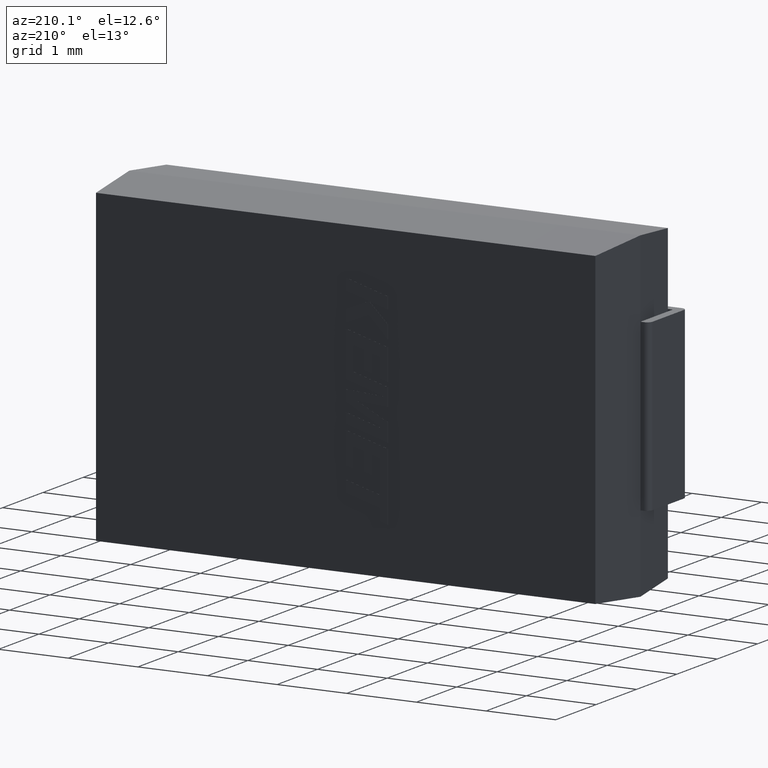
[diagram: clean part render]
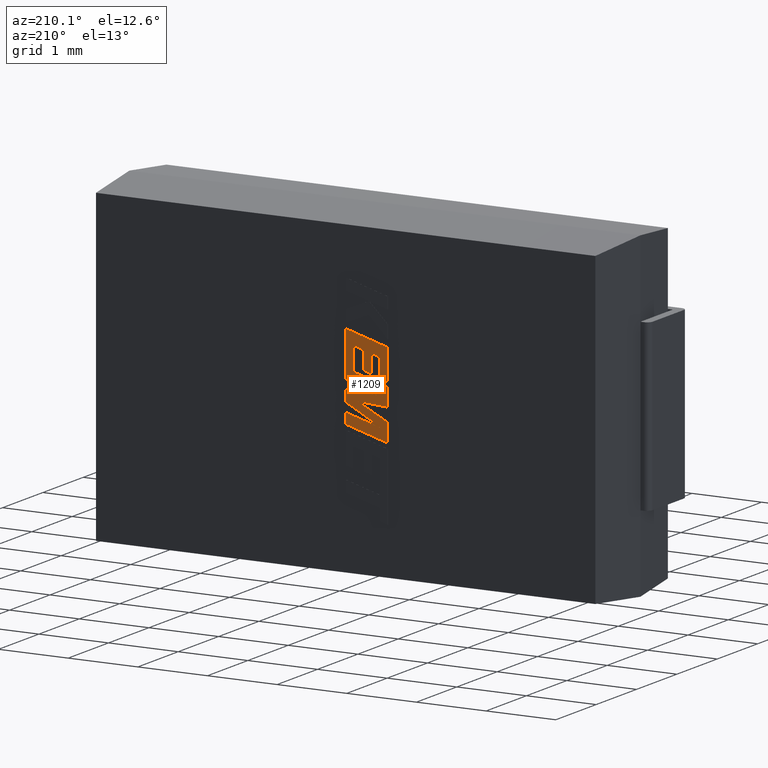
[diagram: same view with one face highlighted and labeled with its STEP entity id]
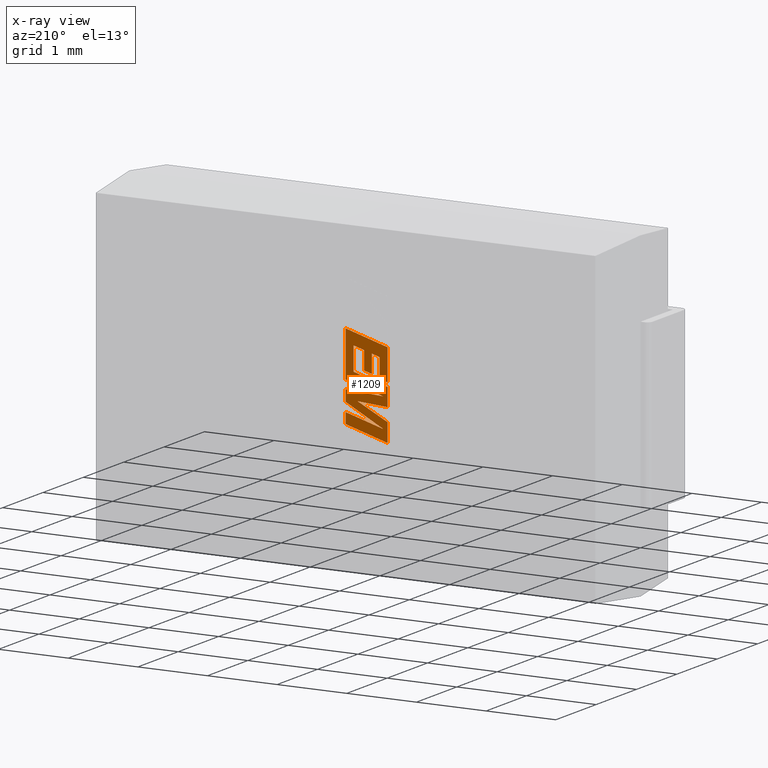
[diagram: x-ray of the same camera — body ghosted, the highlighted face saturated]
A machine part, auxiliary view. The second image highlights one B-rep face of the part: STEP entity #1209.
The next image is the same camera in x-ray: the body ghosted, the highlighted face saturated — about 0% of this face is hidden behind the body in this view.
In plain terms, the highlighted planar face has unit normal (-0, 1, -0).
Its self-contained STEP definition (entity closure, byte-faithful):
#3 = VECTOR ( 'NONE', #3378, 1000.000000000000000 ) ;
#59 = ORIENTED_EDGE ( 'NONE', *, *, #1666, .T. ) ;
#61 = CARTESIAN_POINT ( 'NONE',  ( 0.1148680530367130500, 0.9710000000000000900, -0.3522094576957942600 ) ) ;
#63 = ORIENTED_EDGE ( 'NONE', *, *, #706, .T. ) ;
#87 = CARTESIAN_POINT ( 'NONE',  ( 0.4888473714328154300, 0.9710000000000000900, -0.5796287428792815700 ) ) ;
#113 = ORIENTED_EDGE ( 'NONE', *, *, #3623, .T. ) ;
#133 = DIRECTION ( 'NONE',  ( 2.205986198964109500E-016, 0.0000000000000000000, 1.000000000000000000 ) ) ;
#139 = DIRECTION ( 'NONE',  ( 0.9619530280422579100, 0.0000000000000000000, 0.2732148821721305200 ) ) ;
#146 = ORIENTED_EDGE ( 'NONE', *, *, #2952, .T. ) ;
#202 = EDGE_CURVE ( 'NONE', #953, #1149, #823, .T. ) ;
#225 = PLANE ( 'NONE',  #3861 ) ;
#266 = VECTOR ( 'NONE', #139, 999.9999999999998900 ) ;
#267 = DIRECTION ( 'NONE',  ( 9.097978414977007300E-014, 0.0000000000000000000, -1.000000000000000000 ) ) ;
#278 = DIRECTION ( 'NONE',  ( 9.090908466822406900E-014, 0.0000000000000000000, -1.000000000000000000 ) ) ;
#292 = LINE ( 'NONE', #1015, #3201 ) ;
#293 = CARTESIAN_POINT ( 'NONE',  ( 0.6037723352830632900, 0.9710000000000000900, 0.5009680948956847200 ) ) ;
#337 = CARTESIAN_POINT ( 'NONE',  ( 0.5375226400641756100, 0.9710000000000000900, -0.08690409323463860200 ) ) ;
#339 = LINE ( 'NONE', #809, #381 ) ;
#342 = VERTEX_POINT ( 'NONE', #1706 ) ;
#354 = VECTOR ( 'NONE', #133, 1000.000000000000000 ) ;
#381 = VECTOR ( 'NONE', #2572, 1000.000000000000200 ) ;
#388 = VERTEX_POINT ( 'NONE', #1685 ) ;
#390 = VERTEX_POINT ( 'NONE', #2594 ) ;
#399 = EDGE_CURVE ( 'NONE', #2065, #1013, #339, .T. ) ;
#406 = CARTESIAN_POINT ( 'NONE',  ( 0.5375226400641756100, 0.9710000000000000900, -0.08690409323463860200 ) ) ;
#434 = CARTESIAN_POINT ( 'NONE',  ( 0.6037723352831740900, 0.9710000000000000900, -0.7179495588611855000 ) ) ;
#436 = DIRECTION ( 'NONE',  ( 0.9977993186281748400, 0.0000000000000000000, 0.06630625720963190300 ) ) ;
#458 = LINE ( 'NONE', #1103, #3077 ) ;
#473 = CARTESIAN_POINT ( 'NONE',  ( 0.5401111641926021900, 0.9710000000000000900, 0.3290533760443737400 ) ) ;
#495 = ORIENTED_EDGE ( 'NONE', *, *, #3690, .T. ) ;
#507 = ORIENTED_EDGE ( 'NONE', *, *, #2404, .T. ) ;
#525 = LINE ( 'NONE', #434, #3502 ) ;
#529 = EDGE_CURVE ( 'NONE', #590, #1742, #3893, .T. ) ;
#539 = CARTESIAN_POINT ( 'NONE',  ( 0.6037723352831335700, 0.9710000000000000900, -0.2719027913677968800 ) ) ;
#590 = VERTEX_POINT ( 'NONE', #1858 ) ;
#593 = VECTOR ( 'NONE', #436, 1000.000000000000100 ) ;
#604 = VECTOR ( 'NONE', #267, 1000.000000000000000 ) ;
#610 = CARTESIAN_POINT ( 'NONE',  ( 0.2649290192373626700, 0.9710000000000000900, -0.6441509195145620500 ) ) ;
#688 = LINE ( 'NONE', #3626, #604 ) ;
#689 = CARTESIAN_POINT ( 'NONE',  ( 0.1724296214341100900, 0.9710000000000000900, 0.01678134112216285400 ) ) ;
#697 = ORIENTED_EDGE ( 'NONE', *, *, #3599, .T. ) ;
#706 = EDGE_CURVE ( 'NONE', #1149, #1470, #2079, .T. ) ;
#708 = VERTEX_POINT ( 'NONE', #337 ) ;
#709 = VECTOR ( 'NONE', #3605, 1000.000000000000000 ) ;
#711 = DIRECTION ( 'NONE',  ( 0.9615454294341646600, 0.0000000000000000000, 0.2746459304891803500 ) ) ;
#722 = CARTESIAN_POINT ( 'NONE',  ( 0.6037723352831740900, 0.9710000000000000900, -0.7179495588611855000 ) ) ;
#737 = DIRECTION ( 'NONE',  ( -9.100055233942956100E-014, 0.0000000000000000000, 1.000000000000000000 ) ) ;
#749 = CARTESIAN_POINT ( 'NONE',  ( -8.822695178600791300E-016, 0.9710000000000000900, -0.2412425496636904600 ) ) ;
#782 = ORIENTED_EDGE ( 'NONE', *, *, #3118, .T. ) ;
#809 = CARTESIAN_POINT ( 'NONE',  ( 0.6037723352831281300, 0.9710000000000000900, -0.2116801349541560500 ) ) ;
#812 = LINE ( 'NONE', #61, #3 ) ;
#823 = LINE ( 'NONE', #1053, #2796 ) ;
#864 = EDGE_CURVE ( 'NONE', #1742, #390, #525, .T. ) ;
#879 = LINE ( 'NONE', #1916, #918 ) ;
#918 = VECTOR ( 'NONE', #1131, 1000.000000000000200 ) ;
#953 = VERTEX_POINT ( 'NONE', #2864 ) ;
#994 = ORIENTED_EDGE ( 'NONE', *, *, #202, .T. ) ;
#1013 = VERTEX_POINT ( 'NONE', #2531 ) ;
#1015 = CARTESIAN_POINT ( 'NONE',  ( 0.6037723352830873800, 0.9710000000000000900, 0.2361576550631197000 ) ) ;
#1031 = DIRECTION ( 'NONE',  ( -0.9610029908221109400, 0.0000000000000000000, -0.2765379750250543400 ) ) ;
#1047 = DIRECTION ( 'NONE',  ( -0.9984327301130305800, 0.0000000000000000000, -0.05596501978057384600 ) ) ;
#1048 = DIRECTION ( 'NONE',  ( 0.9617234872627998800, 0.0000000000000000000, 0.2740217765928089100 ) ) ;
#1053 = CARTESIAN_POINT ( 'NONE',  ( -8.112542755622786900E-016, 0.9710000000000000900, 0.1739512132056387800 ) ) ;
#1086 = LINE ( 'NONE', #2195, #266 ) ;
#1103 = CARTESIAN_POINT ( 'NONE',  ( 0.6037723352830632900, 0.9710000000000000900, 0.5009680948956847200 ) ) ;
#1131 = DIRECTION ( 'NONE',  ( 0.8843386665638872700, 0.0000000000000000000, 0.4668459304952820000 ) ) ;
#1149 = VERTEX_POINT ( 'NONE', #2274 ) ;
#1154 = ORIENTED_EDGE ( 'NONE', *, *, #864, .T. ) ;
#1163 = CARTESIAN_POINT ( 'NONE',  ( 0.1719568060153508500, 0.9710000000000000900, 0.01662713069071038500 ) ) ;
#1209 = ADVANCED_FACE ( 'NONE', ( #2099 ), #225, .T. ) ;
#1225 = VECTOR ( 'NONE', #3470, 999.9999999999998900 ) ;
#1282 = VECTOR ( 'NONE', #2100, 1000.000000000000000 ) ;
#1366 = EDGE_CURVE ( 'NONE', #2583, #3517, #292, .T. ) ;
#1411 = VECTOR ( 'NONE', #1048, 1000.000000000000100 ) ;
#1422 = LINE ( 'NONE', #3394, #1845 ) ;
#1426 = ORIENTED_EDGE ( 'NONE', *, *, #399, .T. ) ;
#1441 = CARTESIAN_POINT ( 'NONE',  ( 0.2649290192373626700, 0.9710000000000000900, -0.6441509195145620500 ) ) ;
#1470 = VERTEX_POINT ( 'NONE', #293 ) ;
#1541 = EDGE_CURVE ( 'NONE', #2204, #342, #2782, .T. ) ;
#1547 = VECTOR ( 'NONE', #1961, 1000.000000000000200 ) ;
#1585 = LINE ( 'NONE', #2121, #3907 ) ;
#1590 = EDGE_CURVE ( 'NONE', #388, #2065, #2160, .T. ) ;
#1621 = ORIENTED_EDGE ( 'NONE', *, *, #2803, .T. ) ;
#1623 = VECTOR ( 'NONE', #737, 1000.000000000000000 ) ;
#1649 = CARTESIAN_POINT ( 'NONE',  ( 0.4888473714327902800, 0.9710000000000000900, -0.3045438970576566700 ) ) ;
#1656 = CARTESIAN_POINT ( 'NONE',  ( 0.1724296214341100900, 0.9710000000000000900, 0.01678134112216285400 ) ) ;
#1666 = EDGE_CURVE ( 'NONE', #1013, #3320, #812, .T. ) ;
#1671 = EDGE_LOOP ( 'NONE', ( #782, #3415, #3777, #2429, #1426, #59, #507, #3217, #2484, #1621, #3732, #697, #2275, #2211, #1154, #2395, #3254, #113, #3245, #495, #146, #994, #63 ) ) ;
#1685 = CARTESIAN_POINT ( 'NONE',  ( 0.6037723352831047000, 0.9710000000000000900, 0.04544514194465076900 ) ) ;
#1706 = CARTESIAN_POINT ( 'NONE',  ( 0.2649290192373391400, 0.9710000000000000900, -0.3850414899870292500 ) ) ;
#1742 = VERTEX_POINT ( 'NONE', #722 ) ;
#1765 = DIRECTION ( 'NONE',  ( 0.0000000000000000000, 1.000000000000000000, 0.0000000000000000000 ) ) ;
#1776 = CARTESIAN_POINT ( 'NONE',  ( 0.3765458125335470200, 0.9710000000000000900, -0.3531604190415877900 ) ) ;
#1845 = VECTOR ( 'NONE', #2474, 1000.000000000000200 ) ;
#1858 = CARTESIAN_POINT ( 'NONE',  ( 0.6037723352831335700, 0.9710000000000000900, -0.2719027913677968800 ) ) ;
#1913 = VERTEX_POINT ( 'NONE', #1964 ) ;
#1916 = CARTESIAN_POINT ( 'NONE',  ( -8.112542755622786900E-016, 0.9710000000000000900, 0.04392652526658989700 ) ) ;
#1947 = CARTESIAN_POINT ( 'NONE',  ( -8.467618967111790600E-016, 0.9710000000000000900, -0.1170337797687451300 ) ) ;
#1961 = DIRECTION ( 'NONE',  ( 0.9611638845409428100, 0.0000000000000000000, 0.2759782365589088000 ) ) ;
#1964 = CARTESIAN_POINT ( 'NONE',  ( -8.822695178600791300E-016, 0.9710000000000000900, -0.2412425496636904600 ) ) ;
#1981 = CARTESIAN_POINT ( 'NONE',  ( -8.467618967111790600E-016, 0.9710000000000000900, -0.1170337797687451300 ) ) ;
#2065 = VERTEX_POINT ( 'NONE', #3620 ) ;
#2079 = LINE ( 'NONE', #2704, #3741 ) ;
#2083 = VECTOR ( 'NONE', #278, 1000.000000000000000 ) ;
#2099 = FACE_OUTER_BOUND ( 'NONE', #1671, .T. ) ;
#2100 = DIRECTION ( 'NONE',  ( -9.099267628299300500E-014, 0.0000000000000000000, 1.000000000000000000 ) ) ;
#2102 = LINE ( 'NONE', #3456, #1411 ) ;
#2103 = VERTEX_POINT ( 'NONE', #3369 ) ;
#2121 = CARTESIAN_POINT ( 'NONE',  ( 0.2649290192373391400, 0.9710000000000000900, -0.3850414899870292500 ) ) ;
#2152 = EDGE_CURVE ( 'NONE', #3253, #3221, #1422, .T. ) ;
#2160 = LINE ( 'NONE', #2664, #709 ) ;
#2195 = CARTESIAN_POINT ( 'NONE',  ( 0.4888473714327902800, 0.9710000000000000900, -0.3045438970576566700 ) ) ;
#2204 = VERTEX_POINT ( 'NONE', #1441 ) ;
#2211 = ORIENTED_EDGE ( 'NONE', *, *, #529, .T. ) ;
#2256 = DIRECTION ( 'NONE',  ( 9.091094427461413900E-014, 0.0000000000000000000, -1.000000000000000000 ) ) ;
#2274 = CARTESIAN_POINT ( 'NONE',  ( -8.112542755622786900E-016, 0.9710000000000000900, 0.3273790966074727200 ) ) ;
#2275 = ORIENTED_EDGE ( 'NONE', *, *, #3280, .T. ) ;
#2292 = VERTEX_POINT ( 'NONE', #1776 ) ;
#2312 = DIRECTION ( 'NONE',  ( 0.0000000000000000000, 0.0000000000000000000, 1.000000000000000000 ) ) ;
#2331 = LINE ( 'NONE', #749, #1547 ) ;
#2395 = ORIENTED_EDGE ( 'NONE', *, *, #2517, .T. ) ;
#2404 = EDGE_CURVE ( 'NONE', #3320, #2204, #2102, .T. ) ;
#2429 = ORIENTED_EDGE ( 'NONE', *, *, #1590, .T. ) ;
#2431 = EDGE_CURVE ( 'NONE', #1913, #708, #2331, .T. ) ;
#2474 = DIRECTION ( 'NONE',  ( 0.9601763114335389900, 0.0000000000000000000, 0.2793947940851501100 ) ) ;
#2484 = ORIENTED_EDGE ( 'NONE', *, *, #3042, .T. ) ;
#2517 = EDGE_CURVE ( 'NONE', #390, #1913, #3772, .T. ) ;
#2531 = CARTESIAN_POINT ( 'NONE',  ( 0.1148680530367130500, 0.9710000000000000900, -0.3522094576957942600 ) ) ;
#2572 = DIRECTION ( 'NONE',  ( -0.9610853065521319800, 0.0000000000000000000, -0.2762517575140371300 ) ) ;
#2583 = VERTEX_POINT ( 'NONE', #3766 ) ;
#2594 = CARTESIAN_POINT ( 'NONE',  ( -9.532847601578797700E-016, 0.9710000000000000900, -0.8916909317496535300 ) ) ;
#2664 = CARTESIAN_POINT ( 'NONE',  ( 0.6037723352831047000, 0.9710000000000000900, 0.04544514194465076900 ) ) ;
#2704 = CARTESIAN_POINT ( 'NONE',  ( -8.112542755622786900E-016, 0.9710000000000000900, 0.3273790966074727200 ) ) ;
#2782 = LINE ( 'NONE', #610, #1282 ) ;
#2796 = VECTOR ( 'NONE', #3738, 1000.000000000000000 ) ;
#2803 = EDGE_CURVE ( 'NONE', #2292, #3253, #688, .T. ) ;
#2812 = LINE ( 'NONE', #473, #1225 ) ;
#2864 = CARTESIAN_POINT ( 'NONE',  ( -8.112542755622786900E-016, 0.9710000000000000900, 0.1739512132056387800 ) ) ;
#2872 = VECTOR ( 'NONE', #3864, 1000.000000000000000 ) ;
#2899 = LINE ( 'NONE', #406, #3119 ) ;
#2952 = EDGE_CURVE ( 'NONE', #3804, #953, #2812, .T. ) ;
#2996 = CARTESIAN_POINT ( 'NONE',  ( -9.532847601578797700E-016, 0.9710000000000000900, -0.8916909317496535300 ) ) ;
#3011 = DIRECTION ( 'NONE',  ( 0.9610674221106666500, 0.0000000000000000000, 0.2763139702540534600 ) ) ;
#3042 = EDGE_CURVE ( 'NONE', #342, #2292, #1585, .T. ) ;
#3075 = LINE ( 'NONE', #1656, #593 ) ;
#3077 = VECTOR ( 'NONE', #2256, 1000.000000000000000 ) ;
#3118 = EDGE_CURVE ( 'NONE', #1470, #2583, #458, .T. ) ;
#3119 = VECTOR ( 'NONE', #1047, 1000.000000000000100 ) ;
#3132 = DIRECTION ( 'NONE',  ( -0.8913437914705238900, 0.0000000000000000000, -0.4533279667160974900 ) ) ;
#3201 = VECTOR ( 'NONE', #3132, 1000.000000000000100 ) ;
#3217 = ORIENTED_EDGE ( 'NONE', *, *, #1541, .T. ) ;
#3221 = VERTEX_POINT ( 'NONE', #3808 ) ;
#3229 = EDGE_CURVE ( 'NONE', #3640, #2103, #3661, .T. ) ;
#3245 = ORIENTED_EDGE ( 'NONE', *, *, #3229, .T. ) ;
#3253 = VERTEX_POINT ( 'NONE', #3763 ) ;
#3254 = ORIENTED_EDGE ( 'NONE', *, *, #2431, .T. ) ;
#3280 = EDGE_CURVE ( 'NONE', #3365, #590, #1086, .T. ) ;
#3320 = VERTEX_POINT ( 'NONE', #3364 ) ;
#3364 = CARTESIAN_POINT ( 'NONE',  ( 0.1148680530367434800, 0.9710000000000000900, -0.6869074634693742600 ) ) ;
#3365 = VERTEX_POINT ( 'NONE', #1649 ) ;
#3369 = CARTESIAN_POINT ( 'NONE',  ( -8.112542755622786900E-016, 0.9710000000000000900, 0.04392652526658989700 ) ) ;
#3378 = DIRECTION ( 'NONE',  ( 9.099744102172167400E-014, 0.0000000000000000000, -1.000000000000000000 ) ) ;
#3394 = CARTESIAN_POINT ( 'NONE',  ( 0.3765458125335706100, 0.9710000000000000900, -0.6123065652234414000 ) ) ;
#3415 = ORIENTED_EDGE ( 'NONE', *, *, #1366, .T. ) ;
#3456 = CARTESIAN_POINT ( 'NONE',  ( 0.1148680530367434800, 0.9710000000000000900, -0.6869074634693742600 ) ) ;
#3470 = DIRECTION ( 'NONE',  ( -0.9611542233439102100, 0.0000000000000000000, -0.2760118818967128900 ) ) ;
#3502 = VECTOR ( 'NONE', #1031, 1000.000000000000100 ) ;
#3517 = VERTEX_POINT ( 'NONE', #689 ) ;
#3586 = CARTESIAN_POINT ( 'NONE',  ( 0.5401111641926021900, 0.9710000000000000900, 0.3290533760443737400 ) ) ;
#3599 = EDGE_CURVE ( 'NONE', #3221, #3365, #3850, .T. ) ;
#3605 = DIRECTION ( 'NONE',  ( 9.086626953899770000E-014, 0.0000000000000000000, -1.000000000000000000 ) ) ;
#3606 = EDGE_CURVE ( 'NONE', #3517, #388, #3075, .T. ) ;
#3620 = CARTESIAN_POINT ( 'NONE',  ( 0.6037723352831281300, 0.9710000000000000900, -0.2116801349541560500 ) ) ;
#3623 = EDGE_CURVE ( 'NONE', #708, #3640, #2899, .T. ) ;
#3626 = CARTESIAN_POINT ( 'NONE',  ( 0.3765458125335470200, 0.9710000000000000900, -0.3531604190415877900 ) ) ;
#3640 = VERTEX_POINT ( 'NONE', #1947 ) ;
#3661 = LINE ( 'NONE', #1981, #354 ) ;
#3690 = EDGE_CURVE ( 'NONE', #2103, #3804, #879, .T. ) ;
#3732 = ORIENTED_EDGE ( 'NONE', *, *, #2152, .T. ) ;
#3738 = DIRECTION ( 'NONE',  ( 0.0000000000000000000, 0.0000000000000000000, 1.000000000000000000 ) ) ;
#3741 = VECTOR ( 'NONE', #3011, 999.9999999999998900 ) ;
#3763 = CARTESIAN_POINT ( 'NONE',  ( 0.3765458125335706100, 0.9710000000000000900, -0.6123065652234414000 ) ) ;
#3766 = CARTESIAN_POINT ( 'NONE',  ( 0.6037723352830873800, 0.9710000000000000900, 0.2361576550631197000 ) ) ;
#3772 = LINE ( 'NONE', #2996, #2872 ) ;
#3777 = ORIENTED_EDGE ( 'NONE', *, *, #3606, .T. ) ;
#3804 = VERTEX_POINT ( 'NONE', #3586 ) ;
#3808 = CARTESIAN_POINT ( 'NONE',  ( 0.4888473714328154300, 0.9710000000000000900, -0.5796287428792815700 ) ) ;
#3850 = LINE ( 'NONE', #87, #1623 ) ;
#3861 = AXIS2_PLACEMENT_3D ( 'NONE', #1163, #1765, #2312 ) ;
#3864 = DIRECTION ( 'NONE',  ( 1.307882569499552200E-016, 0.0000000000000000000, 1.000000000000000000 ) ) ;
#3893 = LINE ( 'NONE', #539, #2083 ) ;
#3907 = VECTOR ( 'NONE', #711, 1000.000000000000100 ) ;